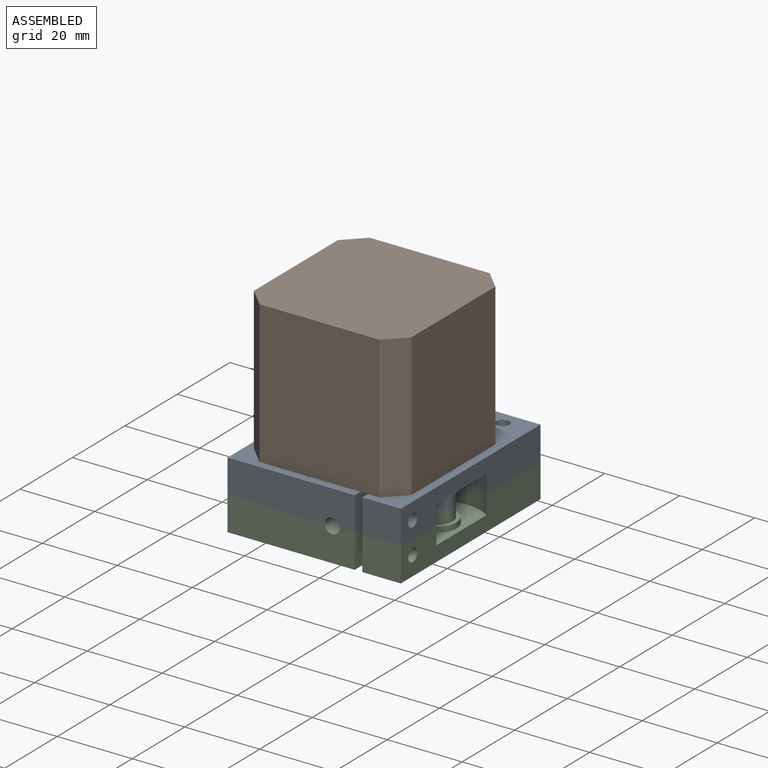
[diagram: assembled view]
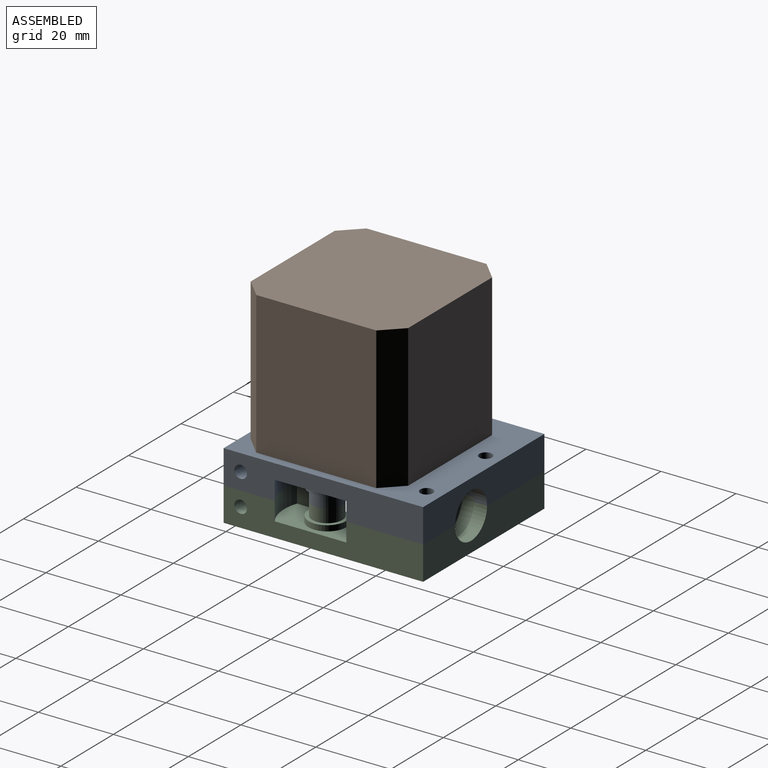
[diagram: assembled view, second angle]
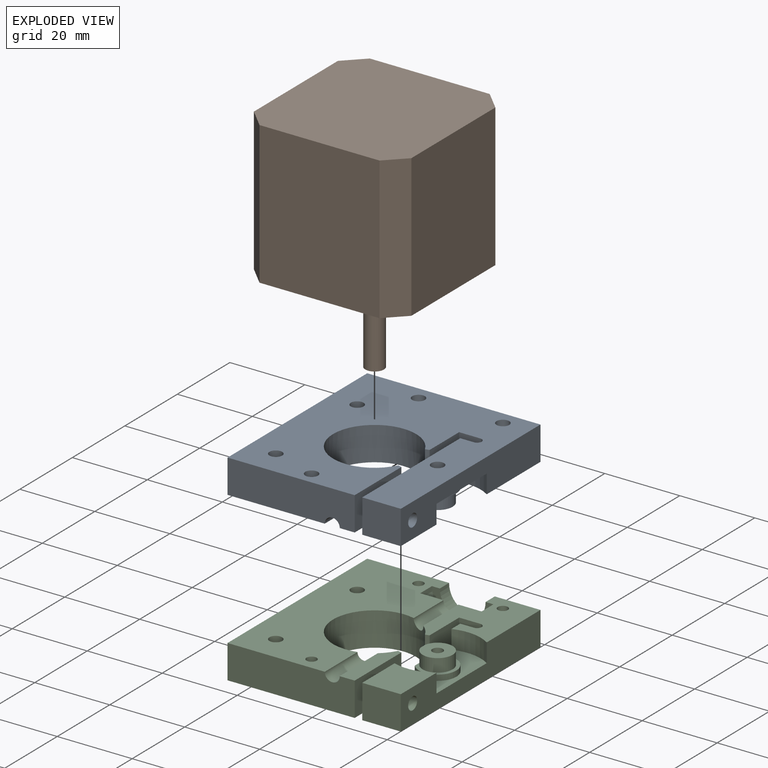
[diagram: exploded view]
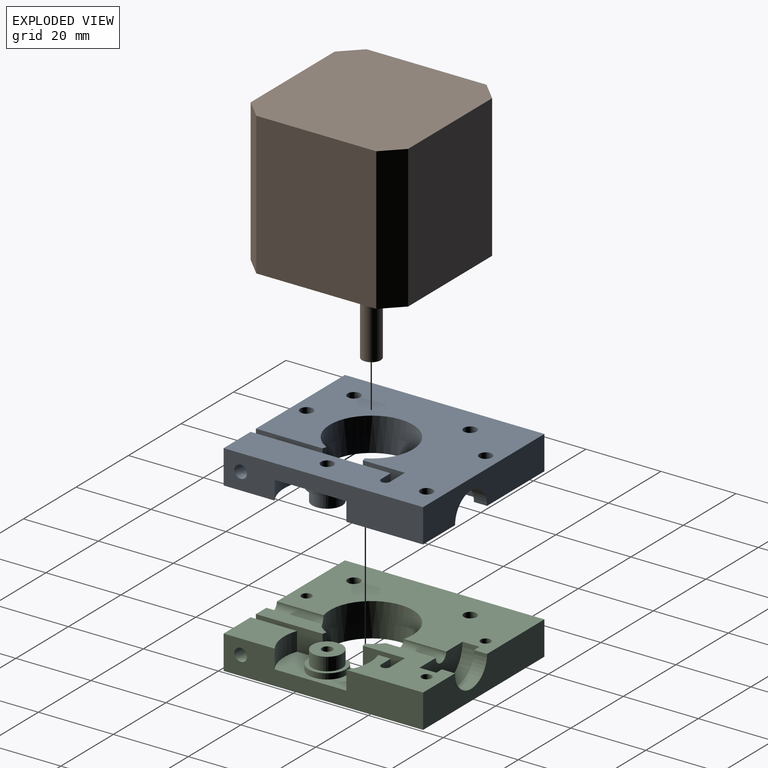
[diagram: exploded view, second angle]
ASSEMBLY  parts=3 mates=2
PART A: 41 faces, bbox 46.2x53.2x9 mm
  f0: plane 53.2x25.93mm, normal (0,0,-1), area 1042.9mm2, adj f3,f9,f10,f11,f16,f18,f21,f22
  f1: plane 18.06x3.98mm, normal (0,0,-1), area 65.8mm2, adj f3,f7,f11,f34,f39
  f2: plane 24.92x16.27mm, normal (0,0,-1), area 253mm2, adj f3,f4,f5,f8,f9,f12,f13,f14
  f3: cylinder r=11.1mm len=22.2mm, axis (0,0,-1), area 518mm2, adj f0,f1,f2,f20,f33,f34,f39,f40
  f4: plane 37.34x9mm, normal (-1,0,0), area 234.7mm2, adj f2,f6,f14,f15,f19,f20,f23,f24
  f5: plane 53.2x9mm, normal (1,0,0), area 374.2mm2, adj f2,f9,f15,f19,f20,f23,f25,f26
  f6: plane 8x7.89mm, normal (0,0,-1), area 41.1mm2, adj f4,f27,f38
  f7: plane 17.8x9mm, normal (1,0,0), area 154.1mm2, adj f1,f11,f20,f36,f39
  f8: plane 11.24x9mm, normal (1,0,0), area 101.2mm2, adj f2,f12,f20,f40
  f9: plane 46.2x9mm, normal (0,1,0), area 357.4mm2, adj f0,f2,f5,f10,f20,f32
  f10: plane 53.2x9mm, normal (-1,0,0), area 478.8mm2, adj f0,f9,f11,f20
  f11: plane 33.91x9mm, normal (0,-1,0), area 298.9mm2, adj f0,f1,f7,f10,f20,f34
  f12: plane 9x5.65mm, normal (0,-1,0), area 50.9mm2, adj f2,f8,f13,f20
  f13: cylinder r=1.22mm len=9mm, axis (0,0,1), area 34.4mm2, adj f2,f12,f14,f20
  f14: plane 9x3.65mm, normal (0,1,0), area 32.9mm2, adj f2,f4,f13,f20
  f15: plane 10.29x9mm, normal (0,-1,0), area 92.6mm2, adj f4,f5,f19,f20
  f16: cylinder r=1.7mm len=9mm, axis (0,0,1), area 96.1mm2, adj f0,f20
  f17: cylinder r=1.7mm len=9mm, axis (0,0,1), area 96.1mm2, adj f2,f20
  f18: cylinder r=1.7mm len=9mm, axis (0,0,1), area 96.1mm2, adj f0,f20
  f19: plane 13.62x10.29mm, normal (0,0,-1), area 125mm2, adj f4,f5,f15,f25
  f20: plane 53.2x46.2mm, normal (0,0,1), area 1923mm2, adj f3,f4,f5,f7,f8,f9,f10,f11
  f21: cylinder r=1.7mm len=9mm, axis (0,0,-1), area 96.1mm2, adj f0,f20
  f22: cylinder r=1.7mm len=9mm, axis (0,0,-1), area 96.1mm2, adj f0,f20
  f23: cylinder r=11.5mm len=10.29mm, axis (0,0,-1), area 53.8mm2, adj f2,f4,f5,f26
  f24: cylinder r=5mm len=10mm, axis (0,0,-1), area 36.9mm2, adj f4,f26,f28
  f25: cylinder r=11.5mm len=10.29mm, axis (0,0,-1), area 53.8mm2, adj f4,f5,f19,f26
  f26: plane 23x10.29mm, normal (0,0,-1), area 153.2mm2, adj f4,f5,f23,f24,f25
  f27: cylinder r=4mm len=8mm, axis (0,0,-1), area 81.4mm2, adj f4,f6,f28
  f28: plane 10x8.89mm, normal (0,0,-1), area 23.7mm2, adj f4,f24,f27
  f29: plane 16.4x8.2mm, normal (0,1,0), area 99.3mm2, adj f0,f2,f31,f33
  f30: plane 16.4x8.2mm, normal (0,-1,0), area 47.2mm2, adj f0,f2,f31,f32
  f31: cylinder r=8.2mm len=16.4mm, axis (0,-1,0), area 115.9mm2, adj f0,f2,f29,f30
  f32: cylinder r=6.1mm len=12.2mm, axis (0,-1,0), area 67.3mm2, adj f0,f2,f9,f30
  f33: cylinder r=2mm len=13.34mm, axis (0,-1,0), area 76.6mm2, adj f0,f2,f3,f29
  f34: cylinder r=2mm len=14.5mm, axis (0,-1,0), area 83.9mm2, adj f0,f1,f3,f11
  f35: plane 2.8x2.8mm, normal (1,0,0), area 6.2mm2, adj f36
  f36: cylinder r=1.4mm len=7.71mm, axis (1,0,0), area 67.8mm2, adj f7,f35
  f37: cylinder r=1.7mm len=10.29mm, axis (1,0,0), area 109.9mm2, adj f4,f5
  f38: cylinder r=1.7mm len=9mm, axis (0,0,-1), area 96.1mm2, adj f6,f20
  f39: plane 9x1.05mm, normal (0.24,0.97,0), area 9.8mm2, adj f1,f3,f7,f20
  f40: plane 9x1.05mm, normal (0.24,-0.97,0), area 9.8mm2, adj f2,f3,f8,f20
PART B: 22 faces, bbox 42x42x62 mm
  f0: plane 38x32mm, normal (-1,0,0), area 1216mm2, adj f4,f5,f8,f9
  f1: plane 38x32mm, normal (0,-1,0), area 1216mm2, adj f4,f5,f7,f9
  f2: plane 38x32mm, normal (1,0,0), area 1216mm2, adj f4,f5,f6,f7
  f3: plane 38x32mm, normal (0,1,0), area 1216mm2, adj f4,f5,f6,f8
  f4: plane 42x42mm, normal (0,0,1), area 1305.6mm2, adj f0,f1,f2,f3,f6,f7,f8,f9
  f5: plane 42x42mm, normal (0,0,-1), area 1714mm2, adj f0,f1,f2,f3,f6,f7,f8,f9
  f6: plane 38x5mm, normal (0.71,0.71,0), area 268.7mm2, adj f2,f3,f4,f5
  f7: plane 38x5mm, normal (0.71,-0.71,0), area 268.7mm2, adj f1,f2,f4,f5
  f8: plane 38x5mm, normal (-0.71,0.71,0), area 268.7mm2, adj f0,f3,f4,f5
  f9: plane 38x5mm, normal (-0.71,-0.71,0), area 268.7mm2, adj f0,f1,f4,f5
  f10: cylinder r=11mm len=22mm, axis (0,0,-1), area 138.2mm2, adj f4,f11
  f11: plane 22x22mm, normal (0,0,1), area 360.5mm2, adj f10,f12
  f12: cylinder r=2.5mm len=22mm, axis (0,0,-1), area 345.6mm2, adj f11,f13
  f13: plane 5x5mm, normal (0,0,1), area 19.6mm2, adj f12
  f14: cylinder r=1.5mm len=25mm, axis (0,0,1), area 235.6mm2, adj f4,f15
  f15: plane 3x3mm, normal (0,0,1), area 7.1mm2, adj f14
  f16: cylinder r=1.5mm len=25mm, axis (0,0,1), area 235.6mm2, adj f4,f17
  f17: plane 3x3mm, normal (0,0,1), area 7.1mm2, adj f16
  f18: cylinder r=1.5mm len=25mm, axis (0,0,1), area 235.6mm2, adj f4,f19
  f19: plane 3x3mm, normal (0,0,1), area 7.1mm2, adj f18
  f20: cylinder r=1.5mm len=25mm, axis (0,0,1), area 235.6mm2, adj f4,f21
  f21: plane 3x3mm, normal (0,0,1), area 7.1mm2, adj f20
PART C: 41 faces, bbox 46.2x53.2x9 mm
  f0: plane 53.2x25.93mm, normal (0,0,1), area 1049.6mm2, adj f3,f8,f9,f10,f17,f19,f22,f23
  f1: plane 18.06x3.98mm, normal (0,0,1), area 65.8mm2, adj f3,f7,f10,f34,f40
  f2: plane 24.92x16.27mm, normal (0,0,1), area 256.3mm2, adj f3,f4,f8,f11,f12,f13,f14,f16
  f3: cylinder r=11.1mm len=22.2mm, axis (0,0,1), area 518mm2, adj f0,f1,f2,f21,f30,f34,f39,f40
  f4: plane 37.34x9mm, normal (-1,0,0), area 234.7mm2, adj f2,f5,f6,f14,f15,f20,f21,f24
  f5: plane 8x7.89mm, normal (0,0,1), area 44mm2, adj f4,f27,f38
  f6: cylinder r=5mm len=10mm, axis (0,0,1), area 36.9mm2, adj f4,f26,f28
  f7: plane 17.8x9mm, normal (1,0,0), area 154.1mm2, adj f1,f10,f21,f35,f40
  f8: plane 46.2x9mm, normal (0,1,0), area 357.4mm2, adj f0,f2,f9,f18,f21,f31
  f9: plane 53.2x9mm, normal (-1,0,0), area 478.8mm2, adj f0,f8,f10,f21
  f10: plane 33.91x9mm, normal (0,-1,0), area 298.9mm2, adj f0,f1,f7,f9,f21,f34
  f11: plane 11.24x9mm, normal (1,0,0), area 101.2mm2, adj f2,f12,f21,f39
  f12: plane 9x5.65mm, normal (0,-1,0), area 50.9mm2, adj f2,f11,f13,f21
  f13: cylinder r=1.22mm len=9mm, axis (0,0,-1), area 34.4mm2, adj f2,f12,f14,f21
  f14: plane 9x3.65mm, normal (0,1,0), area 32.9mm2, adj f2,f4,f13,f21
  f15: plane 10.29x9mm, normal (0,-1,0), area 92.6mm2, adj f4,f18,f20,f21
  f16: cylinder r=1.35mm len=9mm, axis (0,0,-1), area 76.3mm2, adj f2,f21
  f17: cylinder r=1.35mm len=9mm, axis (0,0,-1), area 76.3mm2, adj f0,f21
  f18: plane 53.2x9mm, normal (1,0,0), area 374.2mm2, adj f2,f8,f15,f20,f21,f24,f25,f26
  f19: cylinder r=1.35mm len=9mm, axis (0,0,-1), area 76.3mm2, adj f0,f21
  f20: plane 13.62x10.29mm, normal (0,0,1), area 125mm2, adj f4,f15,f18,f25
  f21: plane 53.2x46.2mm, normal (0,0,-1), area 1936mm2, adj f3,f4,f7,f8,f9,f10,f11,f12
  f22: cylinder r=1.7mm len=9mm, axis (0,0,1), area 96.1mm2, adj f0,f21
  f23: cylinder r=1.7mm len=9mm, axis (0,0,1), area 96.1mm2, adj f0,f21
  f24: cylinder r=11.5mm len=10.29mm, axis (0,0,1), area 53.8mm2, adj f2,f4,f18,f26
  f25: cylinder r=11.5mm len=10.29mm, axis (0,0,1), area 53.8mm2, adj f4,f18,f20,f26
  f26: plane 23x10.29mm, normal (0,0,1), area 153.2mm2, adj f4,f6,f18,f24,f25
  f27: cylinder r=4mm len=8mm, axis (0,0,1), area 81.4mm2, adj f4,f5,f28
  f28: plane 10x8.89mm, normal (0,0,1), area 23.7mm2, adj f4,f6,f27
  f29: plane 16.4x8.2mm, normal (0,1,0), area 99.3mm2, adj f0,f2,f30,f33
  f30: cylinder r=2mm len=13.34mm, axis (0,-1,0), area 76.6mm2, adj f0,f2,f3,f29
  f31: cylinder r=6.1mm len=12.2mm, axis (0,-1,0), area 67.3mm2, adj f0,f2,f8,f32
  f32: plane 16.4x8.2mm, normal (0,-1,0), area 47.2mm2, adj f0,f2,f31,f33
  f33: cylinder r=8.2mm len=16.4mm, axis (0,-1,0), area 115.9mm2, adj f0,f2,f29,f32
  f34: cylinder r=2mm len=14.5mm, axis (0,-1,0), area 83.9mm2, adj f0,f1,f3,f10
  f35: cylinder r=1.4mm len=7.71mm, axis (1,0,0), area 67.8mm2, adj f7,f36
  f36: plane 2.8x2.8mm, normal (1,0,0), area 6.2mm2, adj f35
  f37: cylinder r=1.7mm len=10.29mm, axis (1,0,0), area 109.9mm2, adj f4,f18
  f38: cylinder r=1.4mm len=9mm, axis (0,0,1), area 79.2mm2, adj f5,f21
  f39: plane 9x1.05mm, normal (0.24,-0.97,0), area 9.8mm2, adj f2,f3,f11,f21
  f40: plane 9x1.05mm, normal (0.24,0.97,0), area 9.8mm2, adj f1,f3,f7,f21
PLACE A t=(0,0,-9.4)mm
PLACE B rot(axis=(0.71,-0.71,0),180deg) t=(19.57,26.82,46.6)mm
PLACE C t=(0,0,-9.4)mm
MATE fastened B.f20 <-> A.f22  axis (0,0,-1) through (-16.93,21.32,8.6)mm
MATE fastened A.f18 <-> C.f19  axis (0,0,-1) through (-4.59,-13.67,-0.4)mm
